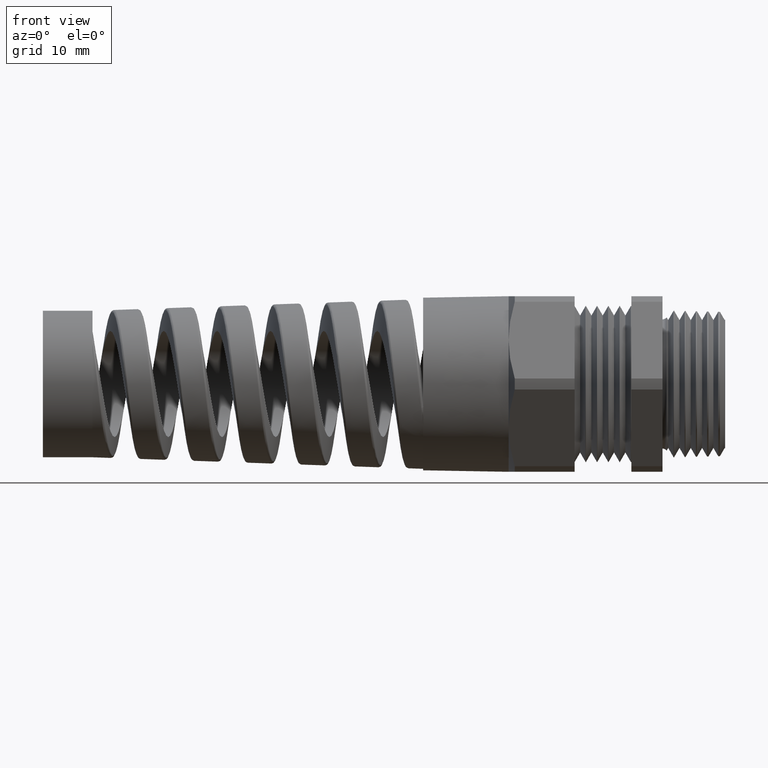
[diagram: clean part render]
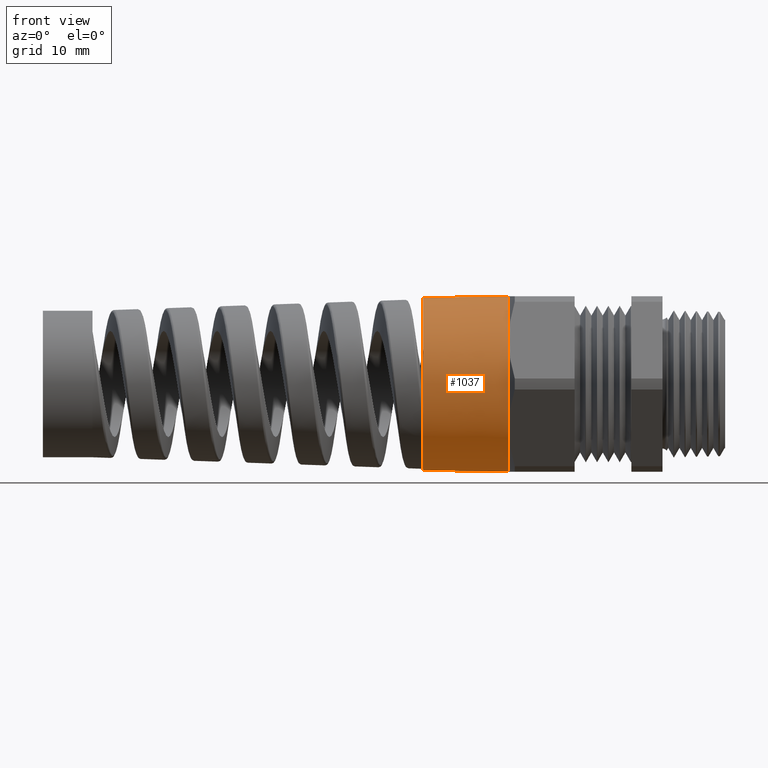
[diagram: same view with one face highlighted and labeled with its STEP entity id]
A machine part, front view. The second image highlights one B-rep face of the part: STEP entity #1037.
In plain terms, the highlighted conical surface has half-angle 1 deg.
Its self-contained STEP definition (entity closure, byte-faithful):
#306 = VERTEX_POINT ( 'NONE', #2438 ) ;
#317 = ORIENTED_EDGE ( 'NONE', *, *, #1574, .T. ) ;
#892 = VERTEX_POINT ( 'NONE', #2845 ) ;
#895 = ORIENTED_EDGE ( 'NONE', *, *, #967, .T. ) ;
#967 = EDGE_CURVE ( 'NONE', #892, #306, #3461, .T. ) ;
#970 = ORIENTED_EDGE ( 'NONE', *, *, #971, .T. ) ;
#971 = EDGE_CURVE ( 'NONE', #972, #892, #3552, .T. ) ;
#972 = VERTEX_POINT ( 'NONE', #3547 ) ;
#973 = ORIENTED_EDGE ( 'NONE', *, *, #975, .T. ) ;
#975 = EDGE_CURVE ( 'NONE', #981, #972, #3545, .T. ) ;
#976 = EDGE_CURVE ( 'NONE', #981, #982, #3541, .T. ) ;
#977 = ORIENTED_EDGE ( 'NONE', *, *, #976, .F. ) ;
#981 = VERTEX_POINT ( 'NONE', #3531 ) ;
#982 = VERTEX_POINT ( 'NONE', #3530 ) ;
#1037 = ADVANCED_FACE ( 'NONE', ( #3923 ), #3922, .T. ) ;
#1046 = EDGE_LOOP ( 'NONE', ( #977, #973, #970, #895, #317, #1710 ) ) ;
#1141 = VERTEX_POINT ( 'NONE', #4853 ) ;
#1574 = EDGE_CURVE ( 'NONE', #306, #1141, #5380, .T. ) ;
#1707 = EDGE_CURVE ( 'NONE', #982, #1141, #5413, .T. ) ;
#1710 = ORIENTED_EDGE ( 'NONE', *, *, #1707, .F. ) ;
#2438 = CARTESIAN_POINT ( 'NONE',  ( -0.7624999999999999600, -0.3767210506462307900, 0.2175000000000000300 ) ) ;
#2845 = CARTESIAN_POINT ( 'NONE',  ( -0.7625000000000001800, -0.3767210506462309600, -0.2175000000000001100 ) ) ;
#3461 = CIRCLE ( 'NONE', #3492, 0.4350000000000000500 ) ;
#3489 = DIRECTION ( 'NONE',  ( 0.0000000000000000000, 0.0000000000000000000, 1.000000000000000000 ) ) ;
#3490 = DIRECTION ( 'NONE',  ( -1.000000000000000000, 0.0000000000000000000, 0.0000000000000000000 ) ) ;
#3491 = CARTESIAN_POINT ( 'NONE',  ( -0.7624999999999999600, 0.0000000000000000000, 0.0000000000000000000 ) ) ;
#3492 = AXIS2_PLACEMENT_3D ( 'NONE', #3491, #3490, #3489 ) ;
#3530 = CARTESIAN_POINT ( 'NONE',  ( -1.186159999999999900, 0.0000000000000000000, 0.4276049871925114400 ) ) ;
#3531 = CARTESIAN_POINT ( 'NONE',  ( -1.186159999999999900, -5.281932182469265700E-017, -0.4276049871925114400 ) ) ;
#3537 = DIRECTION ( 'NONE',  ( 0.0000000000000000000, 0.0000000000000000000, 1.000000000000000000 ) ) ;
#3538 = DIRECTION ( 'NONE',  ( -1.000000000000000000, 0.0000000000000000000, 0.0000000000000000000 ) ) ;
#3539 = CARTESIAN_POINT ( 'NONE',  ( -1.186159999999999900, 0.0000000000000000000, 0.0000000000000000000 ) ) ;
#3540 = AXIS2_PLACEMENT_3D ( 'NONE', #3539, #3538, #3537 ) ;
#3541 = CIRCLE ( 'NONE', #3540, 0.4276049871925114400 ) ;
#3542 = DIRECTION ( 'NONE',  ( 0.9998476951563912700, -2.137303368083796300E-018, -0.01745240643728355000 ) ) ;
#3543 = VECTOR ( 'NONE', #3542, 39.37007874015748100 ) ;
#3544 = CARTESIAN_POINT ( 'NONE',  ( -0.7624999999999998400, -5.327213576290987000E-017, -0.4350000000000000500 ) ) ;
#3545 = LINE ( 'NONE', #3544, #3543 ) ;
#3547 = CARTESIAN_POINT ( 'NONE',  ( -0.7624999999999999600, 0.0000000000000000000, -0.4350000000000001600 ) ) ;
#3548 = DIRECTION ( 'NONE',  ( 0.0000000000000000000, 0.0000000000000000000, 1.000000000000000000 ) ) ;
#3549 = DIRECTION ( 'NONE',  ( -1.000000000000000000, 0.0000000000000000000, 0.0000000000000000000 ) ) ;
#3550 = CARTESIAN_POINT ( 'NONE',  ( -0.7624999999999999600, 0.0000000000000000000, 0.0000000000000000000 ) ) ;
#3551 = AXIS2_PLACEMENT_3D ( 'NONE', #3550, #3549, #3548 ) ;
#3552 = CIRCLE ( 'NONE', #3551, 0.4350000000000000500 ) ;
#3912 = DIRECTION ( 'NONE',  ( 1.000000000000000000, 0.0000000000000000000, 0.0000000000000000000 ) ) ;
#3913 = CARTESIAN_POINT ( 'NONE',  ( -0.7624999999999998400, 0.0000000000000000000, 0.0000000000000000000 ) ) ;
#3914 = AXIS2_PLACEMENT_3D ( 'NONE', #3913, #3912, #3976 ) ;
#3922 = CONICAL_SURFACE ( 'NONE', #3914, 0.4350000000000000500, 0.01745329251994333400 ) ;
#3923 = FACE_OUTER_BOUND ( 'NONE', #1046, .T. ) ;
#3976 = DIRECTION ( 'NONE',  ( 0.0000000000000000000, 0.0000000000000000000, 1.000000000000000000 ) ) ;
#4853 = CARTESIAN_POINT ( 'NONE',  ( -0.7624999999999998400, 0.0000000000000000000, 0.4350000000000000500 ) ) ;
#5376 = DIRECTION ( 'NONE',  ( 0.0000000000000000000, 0.0000000000000000000, 1.000000000000000000 ) ) ;
#5377 = DIRECTION ( 'NONE',  ( -1.000000000000000000, 0.0000000000000000000, 0.0000000000000000000 ) ) ;
#5378 = CARTESIAN_POINT ( 'NONE',  ( -0.7624999999999999600, 0.0000000000000000000, 0.0000000000000000000 ) ) ;
#5379 = AXIS2_PLACEMENT_3D ( 'NONE', #5378, #5377, #5376 ) ;
#5380 = CIRCLE ( 'NONE', #5379, 0.4350000000000000500 ) ;
#5410 = DIRECTION ( 'NONE',  ( 0.9998476951563912700, 0.0000000000000000000, 0.01745240643728355000 ) ) ;
#5411 = VECTOR ( 'NONE', #5410, 39.37007874015748100 ) ;
#5412 = CARTESIAN_POINT ( 'NONE',  ( -0.7624999999999998400, 0.0000000000000000000, 0.4350000000000000500 ) ) ;
#5413 = LINE ( 'NONE', #5412, #5411 ) ;